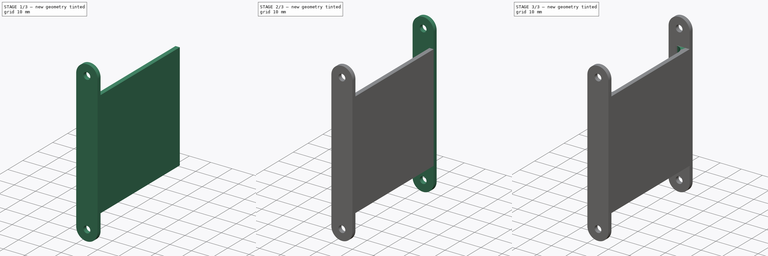
[diagram: build sequence overview — one tinted view per stage of 3, left to right]
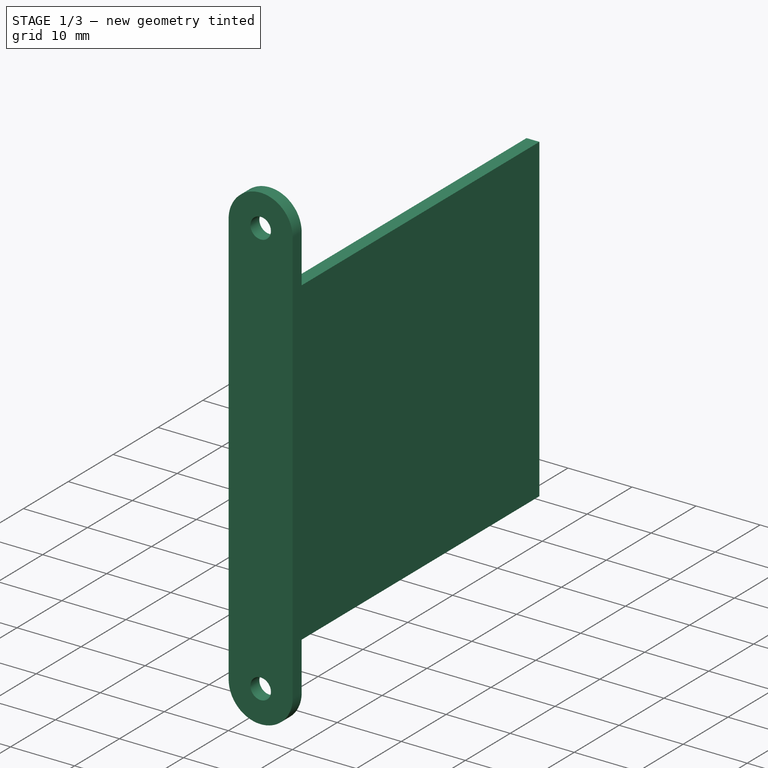
[diagram: stage 1 of 3 — iso view after this stage's code; geometry added in this stage tinted green]
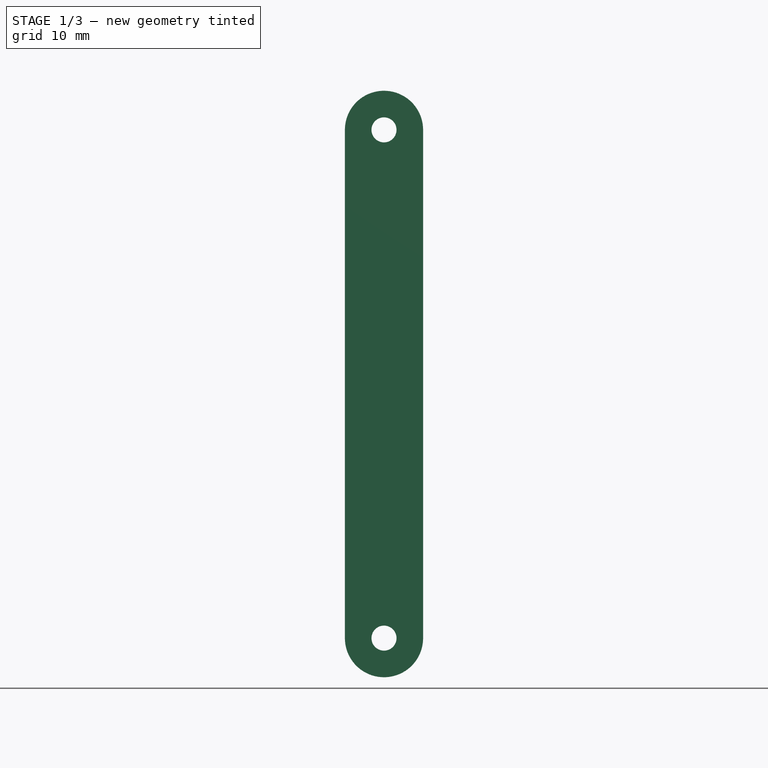
[diagram: stage 1 of 3 — front view after this stage's code; geometry added in this stage tinted green]
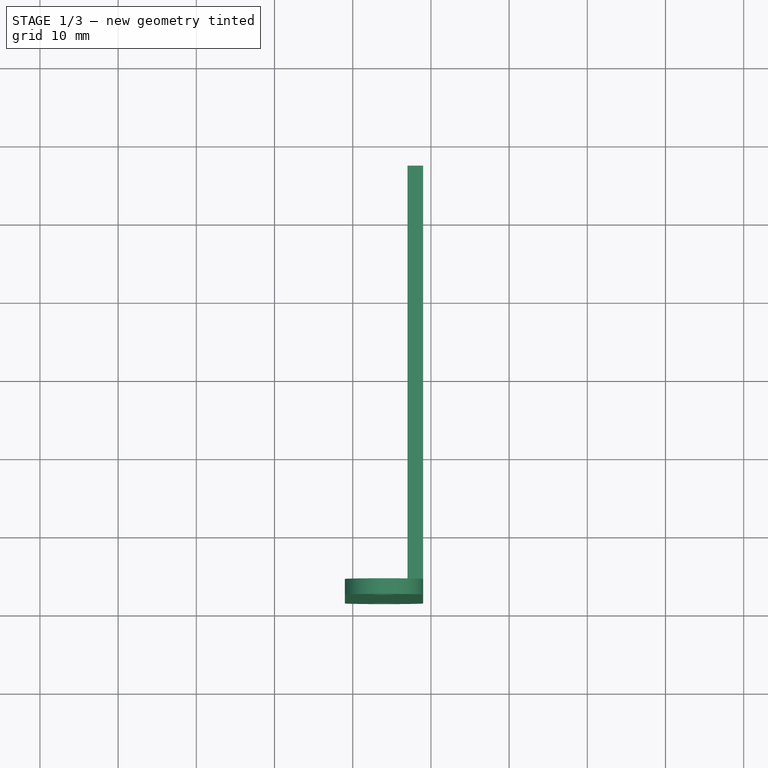
[diagram: stage 1 of 3 — top view after this stage's code; geometry added in this stage tinted green]
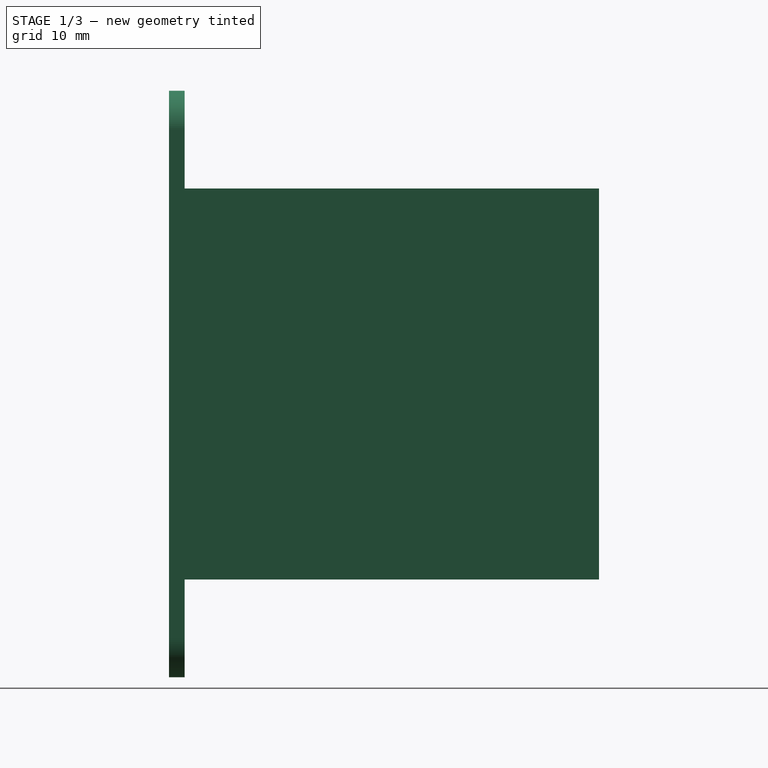
[diagram: stage 1 of 3 — right view after this stage's code; geometry added in this stage tinted green]
FCSTD DOCUMENT  (FreeCAD 0.21R33668 +26 (Git))
Label: 3FU_shin
License: All rights reserved
LicenseURL: http://en.wikipedia.org/wiki/All_rights_reserved
objects: Sketcher::SketchObject×5, PartDesign::Pad×4, Spreadsheet::Sheet×1, PartDesign::Pocket×1, PartDesign::Fillet×1, PartDesign::Body×1
note: 18 computed .brp shape members not serialized (recipe doc carries the construction recipe); baked Part::Feature solids carry a one-line shape summary decoded from their .brp

FEATURE [Sketcher::SketchObject] Sketch  label="baseSketch"
  FullyConstrained = true
  MapMode = 2
  Placement = pos=(27,0,0) rot=(0.57735,0.57735,0.57735;2.0944rad)
  expr: Constraints[10] = Spreadsheet.shin_height
  expr: Constraints[9] = Spreadsheet.shin_width
  sketch-geometry (4):
    g0: LineSegment StartX=-26.5 StartY=25 StartZ=0 EndX=26.5 EndY=25 EndZ=0
    g1: LineSegment StartX=26.5 StartY=25 StartZ=0 EndX=26.5 EndY=-25 EndZ=0
    g2: LineSegment StartX=26.5 StartY=-25 StartZ=0 EndX=-26.5 EndY=-25 EndZ=0
    g3: LineSegment StartX=-26.5 StartY=-25 StartZ=0 EndX=-26.5 EndY=25 EndZ=0
  constraints (11):
    c: Coincident(g0,g1)
    c: Coincident(g1,g2)
    c: Coincident(g2,g3)
    c: Coincident(g3,g0)
    c: Horizontal(g0)
    c: Horizontal(g2)
    c: Vertical(g1)
    c: Vertical(g3)
    c: Symmetric(g0,g1,g-1)
    c: DistanceX(g0,g0) = 53
    c: DistanceY(g3,g3) = 50
FEATURE [Spreadsheet::Sheet] Spreadsheet
  cells = A2='thickness; B2(thickness)=2; A3='shin_width; B3(shin_width)==57 - 2 * B2; C3='original: 58; A4='shin_height; B4(shin_height)=50; C4='original: 40; A5='side_len; B5(side_len)=65; A6='side_depth; B6(side_depth)==12 - B2; A7='side_radius; B7(side_radius)=5; A8='screw_hole_dia; B8(screw_hole_dia)=3.2; C8='loose; A9='wall_dist; B9(wall_dist)=8; A10='cable_width; B10(cable_width)=14; A11='cable_height; B11(cable_height)=4
FEATURE [PartDesign::Pad] Pad  label="basePad"
  Direction = (1,0,0)
  Length = 2
  Length2 = 10
  Placement = pos=(27,0,0) rot=(0.57735,0.57735,0.57735;2.0944rad)
  Profile = -> Sketch
  ReferenceAxis = -> Sketch [N_Axis]
  Type = 0
  expr: Length = Spreadsheet.thickness
FEATURE [Sketcher::SketchObject] Sketch001  label="leftSketch"
  ExternalGeometry = -> [Pad]
  FullyConstrained = true
  MapMode = 5
  Placement = pos=(27,-26.5,2.9e-15) rot=(0.57735,0.57735,-0.57735;2.0944rad)
  Support = -> [Pad]
  expr: Constraints[15] = Spreadsheet.screw_hole_dia
  expr: Constraints[1] = Spreadsheet.side_len
  expr: Constraints[5] = Spreadsheet.side_depth
  sketch-geometry (6):
    g0: LineSegment StartX=-32.5 StartY=2 StartZ=0 EndX=32.5 EndY=2 EndZ=0
    g1: LineSegment StartX=-32.5 StartY=-8 StartZ=0 EndX=32.5 EndY=-8 EndZ=0
    g2: ArcOfCircle CenterX=-32.5 CenterY=-3 CenterZ=0 NormalX=0 NormalY=0 NormalZ=1 AngleXU=0 Radius=5 StartAngle=1.5708 EndAngle=4.71239
    g3: ArcOfCircle CenterX=32.5 CenterY=-3 CenterZ=0 NormalX=0 NormalY=0 NormalZ=1 AngleXU=0 Radius=5 StartAngle=4.71239 EndAngle=7.85398
    g4: Circle CenterX=-32.5 CenterY=-3 CenterZ=0 NormalX=0 NormalY=0 NormalZ=1 AngleXU=0 Radius=1.6
    g5: Circle CenterX=32.5 CenterY=-3 CenterZ=0 NormalX=0 NormalY=0 NormalZ=1 AngleXU=0 Radius=1.6
  constraints (16):
    c: PointOnObject(g-3,g0)
    c: DistanceX(g0,g0) = 65
    c: Equal(g0,g1)
    c: Symmetric(g0,g0,g-2)
    c: Symmetric(g1,g1,g-2)
    c: DistanceY(g1,g0) = 10
    c: Coincident(g2,g0)
    c: Coincident(g2,g1)
    c: Coincident(g3,g0)
    c: Coincident(g3,g1)
    c: Vertical(g2,g0)
    c: Vertical(g3,g0)
    c: Coincident(g4,g2)
    c: Coincident(g5,g3)
    c: Equal(g4,g5)
    c: Diameter(g4) = 3.2
FEATURE [PartDesign::Pad] Pad001  label="leftPad"
  BaseFeature = -> Pad
  Direction = (-1e-16,-1,1e-16)
  Length = 2
  Length2 = 10
  Placement = pos=(27,0,0) rot=(0.57735,0.57735,0.57735;2.0944rad)
  Profile = -> Sketch001
  ReferenceAxis = -> Sketch001 [N_Axis]
  Type = 0
  expr: Length = Spreadsheet.thickness
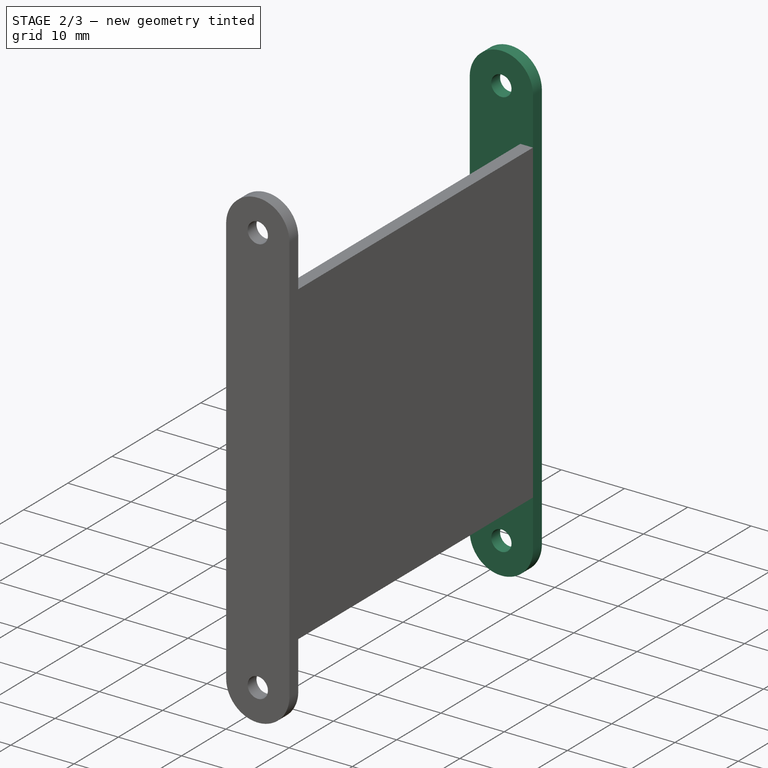
[diagram: stage 2 of 3 — iso view after this stage's code; geometry added in this stage tinted green]
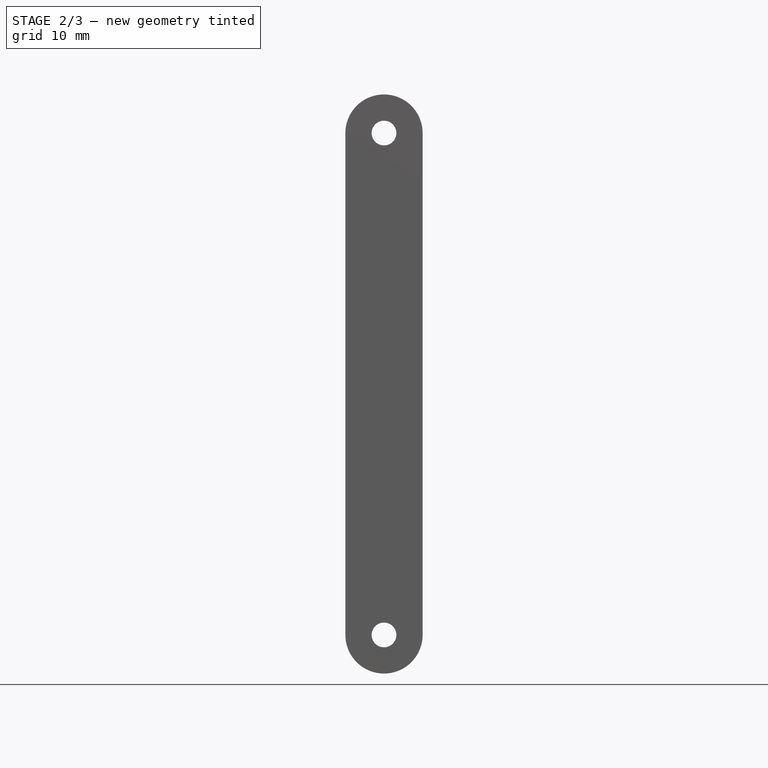
[diagram: stage 2 of 3 — front view after this stage's code; geometry added in this stage tinted green]
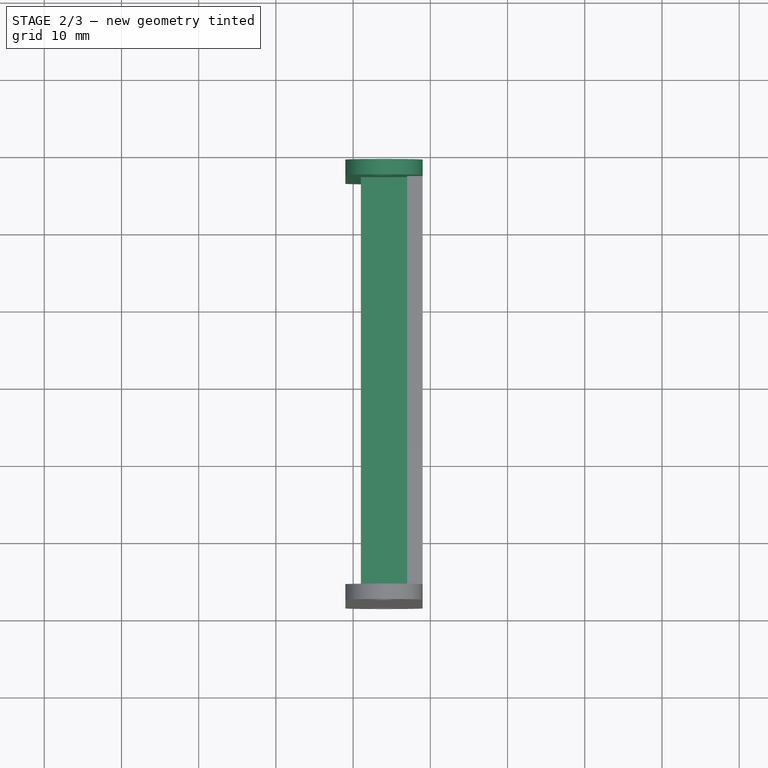
[diagram: stage 2 of 3 — top view after this stage's code; geometry added in this stage tinted green]
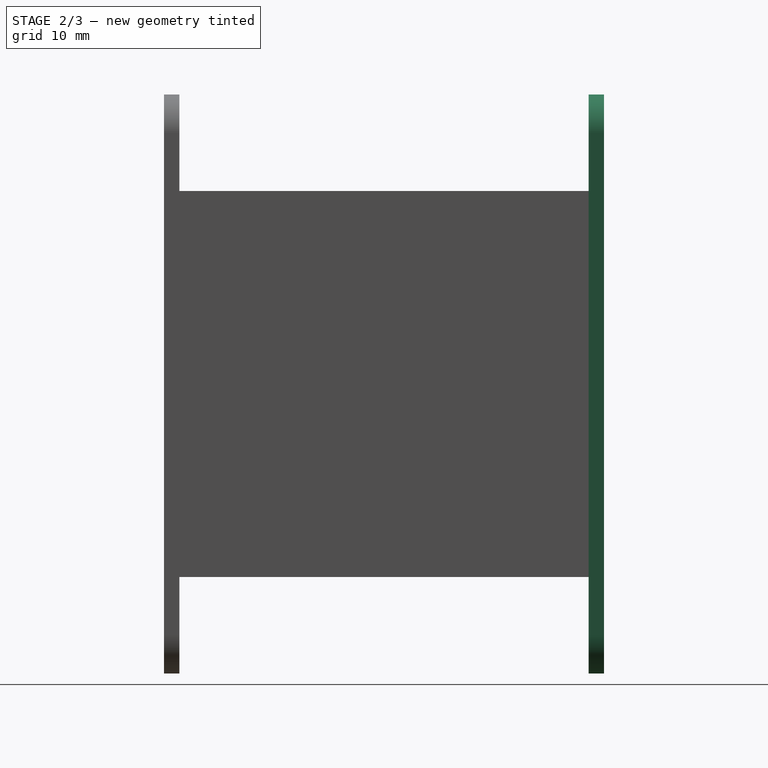
[diagram: stage 2 of 3 — right view after this stage's code; geometry added in this stage tinted green]
FEATURE [Sketcher::SketchObject] Sketch002
  ExternalGeometry = -> [Pad001]
  FullyConstrained = true
  MapMode = 5
  Placement = pos=(27,26.5,-2.9e-15) rot=(0.57735,0.57735,0.57735;4.18879rad)
  Support = -> [Pad001]
  sketch-geometry (6):
    g0: LineSegment StartX=-32.5 StartY=2 StartZ=0 EndX=32.5 EndY=2 EndZ=0
    g1: LineSegment StartX=32.5 StartY=-8 StartZ=0 EndX=-32.5 EndY=-8 EndZ=0
    g2: ArcOfCircle CenterX=-32.5 CenterY=-3 CenterZ=0 NormalX=0 NormalY=0 NormalZ=1 AngleXU=0 Radius=5 StartAngle=1.5708 EndAngle=4.71239
    g3: ArcOfCircle CenterX=32.5 CenterY=-3 CenterZ=0 NormalX=0 NormalY=0 NormalZ=1 AngleXU=0 Radius=5 StartAngle=4.71239 EndAngle=7.85398
    g4: Circle CenterX=-32.5 CenterY=-3 CenterZ=0 NormalX=0 NormalY=0 NormalZ=1 AngleXU=0 Radius=1.6
    g5: Circle CenterX=32.5 CenterY=-3 CenterZ=0 NormalX=0 NormalY=0 NormalZ=1 AngleXU=0 Radius=1.6
  constraints (14):
    c: Coincident(g0,g-5)
    c: Coincident(g0,g-8)
    c: Coincident(g1,g-8)
    c: Coincident(g1,g-6)
    c: Coincident(g2,g0)
    c: Coincident(g2,g1)
    c: Coincident(g3,g0)
    c: Coincident(g3,g1)
    c: Vertical(g2,g-4)
    c: Vertical(g3,g-8)
    c: Equal(g5,g-9)
    c: Equal(g4,g-3)
    c: Coincident(g4,g2)
    c: Coincident(g5,g3)
FEATURE [PartDesign::Pad] Pad002
  BaseFeature = -> Pad001
  Direction = (0,1,0)
  Length = 2
  Length2 = 10
  Placement = pos=(27,0,0) rot=(0.57735,0.57735,0.57735;2.0944rad)
  Profile = -> Sketch002
  ReferenceAxis = -> Sketch002 [N_Axis]
  Type = 0
  expr: Length = Spreadsheet.thickness
FEATURE [Sketcher::SketchObject] Sketch003
  ExternalGeometry = -> [Pad002]
  FullyConstrained = true
  MapMode = 5
  Placement = pos=(27,0,0) rot=(0.57735,0.57735,-0.57735;4.18879rad)
  Support = -> [Pad002]
  expr: Constraints[20] = Spreadsheet.wall_dist
  expr: Constraints[21] = Spreadsheet.wall_dist
  expr: Constraints[22] = Spreadsheet.thickness * 2
  expr: Constraints[23] = Spreadsheet.thickness * 2
  sketch-geometry (8):
    g0: LineSegment StartX=-26.5 StartY=-13 StartZ=0 EndX=26.5 EndY=-13 EndZ=0
    g1: LineSegment StartX=26.5 StartY=-13 StartZ=0 EndX=26.5 EndY=-17 EndZ=0
    g2: LineSegment StartX=26.5 StartY=-17 StartZ=0 EndX=-26.5 EndY=-17 EndZ=0
    g3: LineSegment StartX=-26.5 StartY=-17 StartZ=0 EndX=-26.5 EndY=-13 EndZ=0
    g4: LineSegment StartX=-26.5 StartY=17 StartZ=0 EndX=26.5 EndY=17 EndZ=0
    g5: LineSegment StartX=26.5 StartY=17 StartZ=0 EndX=26.5 EndY=13 EndZ=0
    g6: LineSegment StartX=26.5 StartY=13 StartZ=0 EndX=-26.5 EndY=13 EndZ=0
    g7: LineSegment StartX=-26.5 StartY=13 StartZ=0 EndX=-26.5 EndY=17 EndZ=0
  constraints (24):
    c: Coincident(g0,g1)
    c: Coincident(g1,g2)
    c: Coincident(g2,g3)
    c: Coincident(g3,g0)
    c: Horizontal(g0)
    c: Horizontal(g2)
    c: Vertical(g1)
    c: Vertical(g3)
    c: Coincident(g4,g5)
    c: Coincident(g5,g6)
    c: Coincident(g6,g7)
    c: Coincident(g7,g4)
    c: Horizontal(g4)
    c: Horizontal(g6)
    c: Vertical(g5)
    c: Vertical(g7)
    c: Vertical(g4,g-3)
    c: Vertical(g4,g-3)
    c: Vertical(g2,g-4)
    c: Vertical(g1,g-4)
    c: DistanceY(g-4,g1) = 8
    c: DistanceY(g4,g-3) = 8
    c: DistanceY(g5,g4) = 4
    c: DistanceY(g1,g1) = 4
FEATURE [PartDesign::Pad] Pad003
  BaseFeature = -> Pad002
  Direction = (-1,0,-4e-16)
  Length = 6
  Length2 = 10
  Placement = pos=(27,0,0) rot=(0.57735,0.57735,0.57735;2.0944rad)
  Profile = -> Sketch003
  ReferenceAxis = -> Sketch003 [N_Axis]
  Type = 0
  expr: Length = Spreadsheet.side_depth - 2 * Spreadsheet.thickness
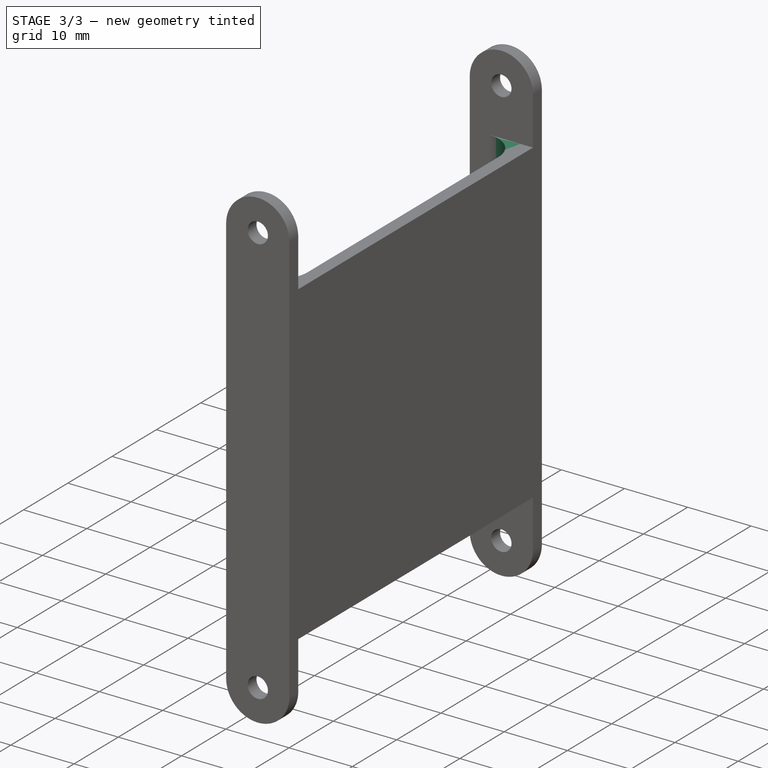
[diagram: stage 3 of 3 — iso view after this stage's code; geometry added in this stage tinted green]
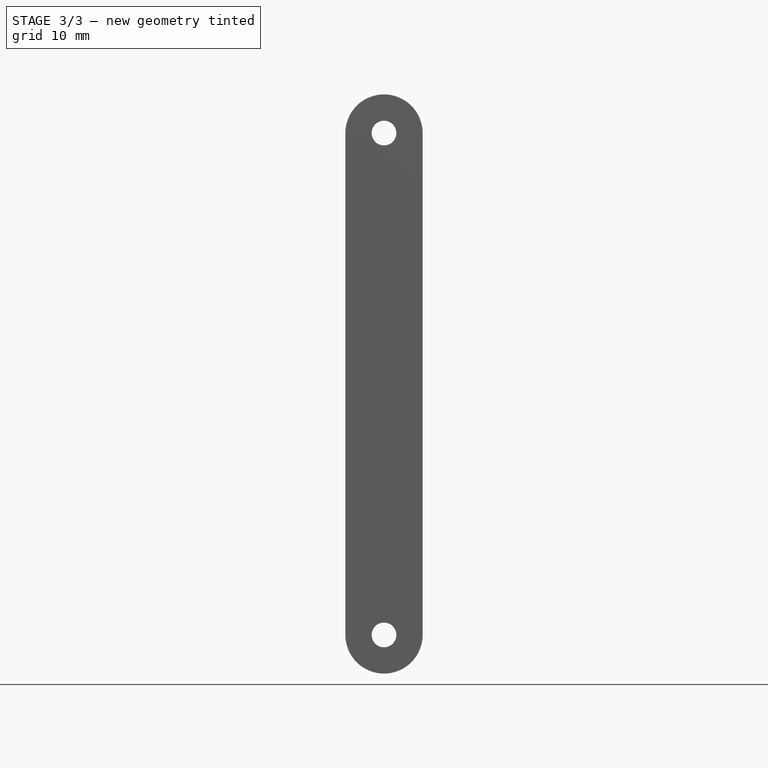
[diagram: stage 3 of 3 — front view after this stage's code; geometry added in this stage tinted green]
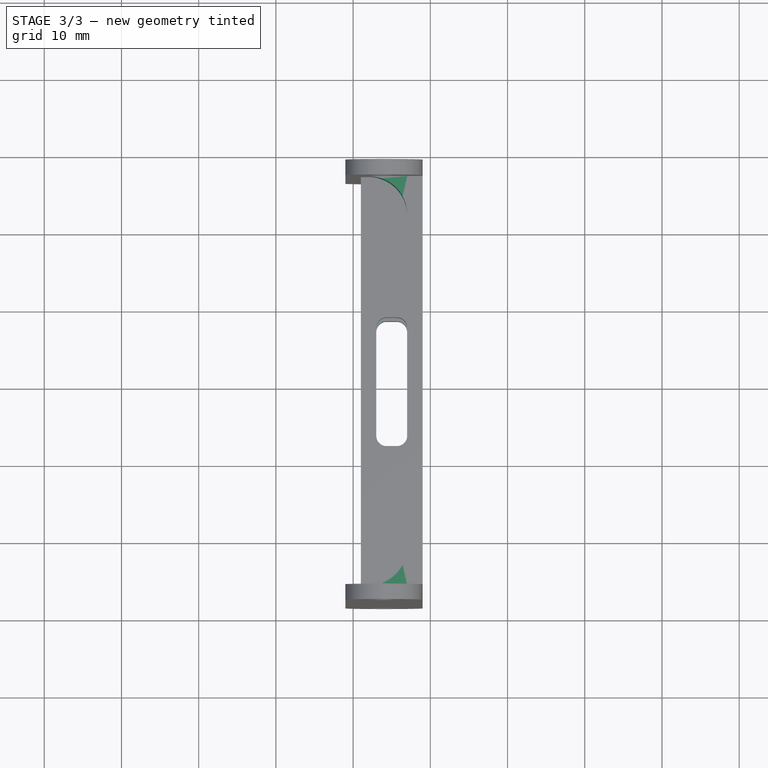
[diagram: stage 3 of 3 — top view after this stage's code; geometry added in this stage tinted green]
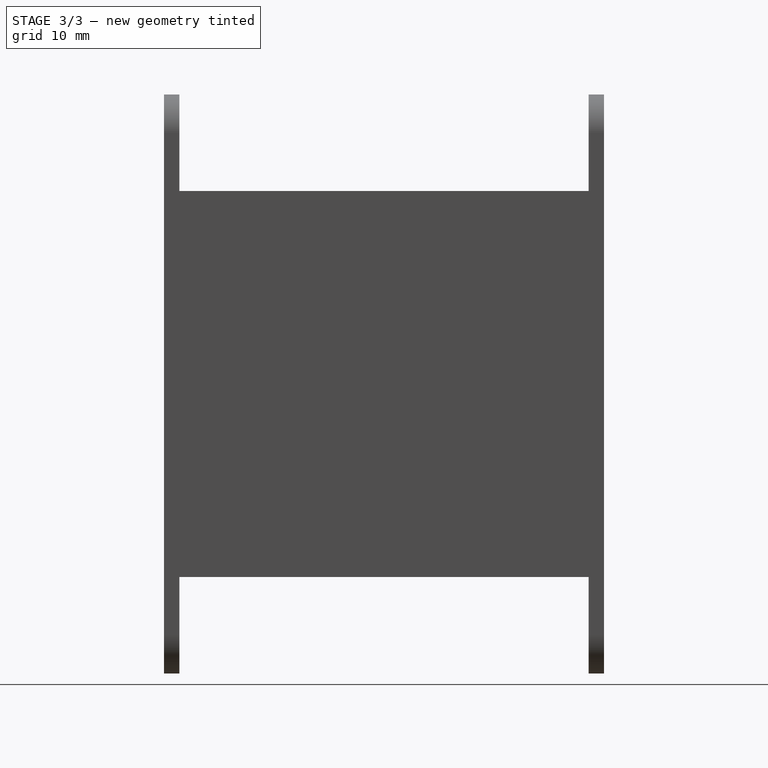
[diagram: stage 3 of 3 — right view after this stage's code; geometry added in this stage tinted green]
FEATURE [Sketcher::SketchObject] Sketch004
  ExternalGeometry = -> [Pad003]
  FullyConstrained = true
  MapMode = 5
  Placement = pos=(27,0,-17) rot=(0.707107,0.707107,0;3.14159rad)
  Support = -> [Pad003]
  expr: Constraints[20] = Spreadsheet.cable_width
  expr: Constraints[21] = Spreadsheet.cable_height
  expr: Constraints[22] = Spreadsheet.cable_height / 3
  sketch-geometry (10):
    g0: ArcOfCircle CenterX=-7 CenterY=-1.33333 CenterZ=0 NormalX=0 NormalY=0 NormalZ=1 AngleXU=0 Radius=1.33333 StartAngle=1.5708 EndAngle=3.14159
    g1: LineSegment StartX=-7 StartY=-2.4e-15 StartZ=0 EndX=7 EndY=-2.4e-15 EndZ=0
    g2: ArcOfCircle CenterX=7 CenterY=-1.33333 CenterZ=0 NormalX=0 NormalY=0 NormalZ=1 AngleXU=0 Radius=1.33333 StartAngle=1e-16 EndAngle=1.5708
    g3: LineSegment StartX=8.33333 StartY=-1.33333 StartZ=0 EndX=8.33333 EndY=-2.66667 EndZ=0
    g4: ArcOfCircle CenterX=7 CenterY=-2.66667 CenterZ=0 NormalX=0 NormalY=0 NormalZ=1 AngleXU=0 Radius=1.33333 StartAngle=4.71239 EndAngle=6.28319
    g5: LineSegment StartX=7 StartY=-4 StartZ=0 EndX=-7 EndY=-4 EndZ=0
    g6: ArcOfCircle CenterX=-7 CenterY=-2.66667 CenterZ=0 NormalX=0 NormalY=0 NormalZ=1 AngleXU=0 Radius=1.33333 StartAngle=3.14159 EndAngle=4.71239
    g7: LineSegment StartX=-8.33333 StartY=-2.66667 StartZ=0 EndX=-8.33333 EndY=-1.33333 EndZ=0
    g8: GeomPoint X=-8.33333 Y=-2.4e-15 Z=0
    g9: GeomPoint X=8.33333 Y=-4 Z=0
  constraints (23):
    c: Tangent(g0,g1) = 1.5708
    c: Tangent(g1,g2) = 1.5708
    c: Tangent(g2,g3) = 1.5708
    c: Tangent(g3,g4) = 1.5708
    c: Tangent(g4,g5) = 1.5708
    c: Tangent(g5,g6) = 1.5708
    c: Tangent(g6,g7) = 1.5708
    c: Tangent(g7,g0) = 1.5708
    c: Horizontal(g5)
    c: Vertical(g3)
    c: Vertical(g7)
    c: Equal(g0,g2)
    c: Equal(g2,g4)
    c: Equal(g4,g6)
    c: PointOnObject(g8,g1)
    c: PointOnObject(g8,g7)
    c: PointOnObject(g9,g3)
    c: PointOnObject(g9,g5)
    c: PointOnObject(g8,g-3)
    c: Symmetric(g1,g0,g-2)
    c: DistanceX(g1,g1) = 14
    c: DistanceY(g5,g0) = 4
    c: DistanceY(g0,g0) = 1.33333
FEATURE [PartDesign::Pocket] Pocket
  BaseFeature = -> Pad003
  Direction = (-6e-16,0,1)
  Length = 50
  Length2 = 5
  Placement = pos=(27,0,0) rot=(0.57735,0.57735,0.57735;2.0944rad)
  Profile = -> Sketch004
  ReferenceAxis = -> Sketch004 [N_Axis]
  Type = 0
  expr: Length = Spreadsheet.shin_height
FEATURE [PartDesign::Fillet] Fillet
  Base = -> Pocket [Edge17,Edge95,Edge21,Edge96,Edge36,Edge13]
  BaseFeature = -> Pocket
  Placement = pos=(27,0,0) rot=(0.57735,0.57735,0.57735;2.0944rad)
  Radius = 5
  SupportTransform = false
  UseAllEdges = false
FEATURE [PartDesign::Body] Body
  Group = -> [Sketch,Pad,Sketch001,Pad001,Sketch002,Pad002,Sketch003,Pad003,Sketch004,Pocket,Fillet]
  Origin = -> Origin
  Tip = -> Fillet
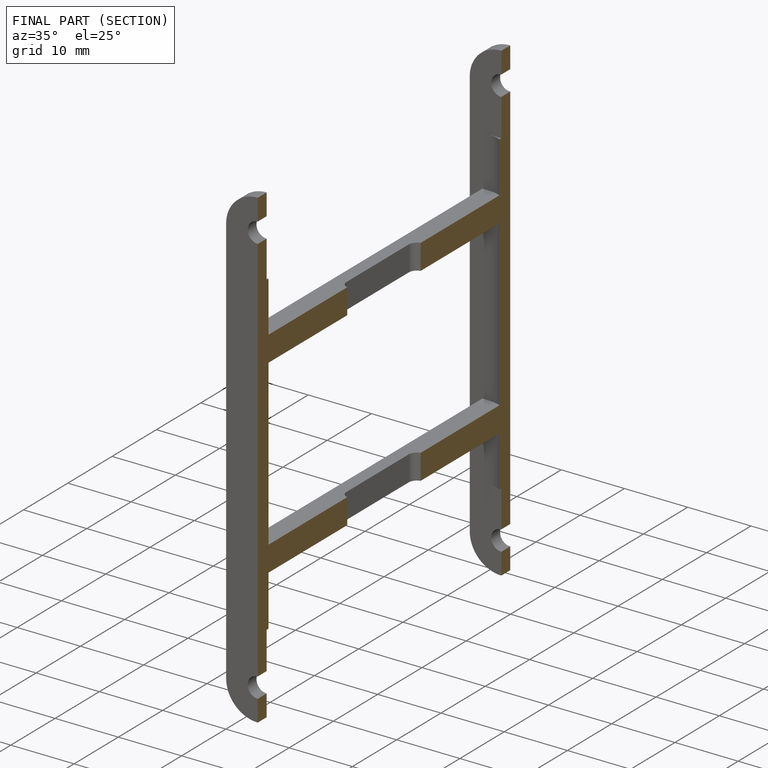
[diagram: finished part — half-section view (interior)]
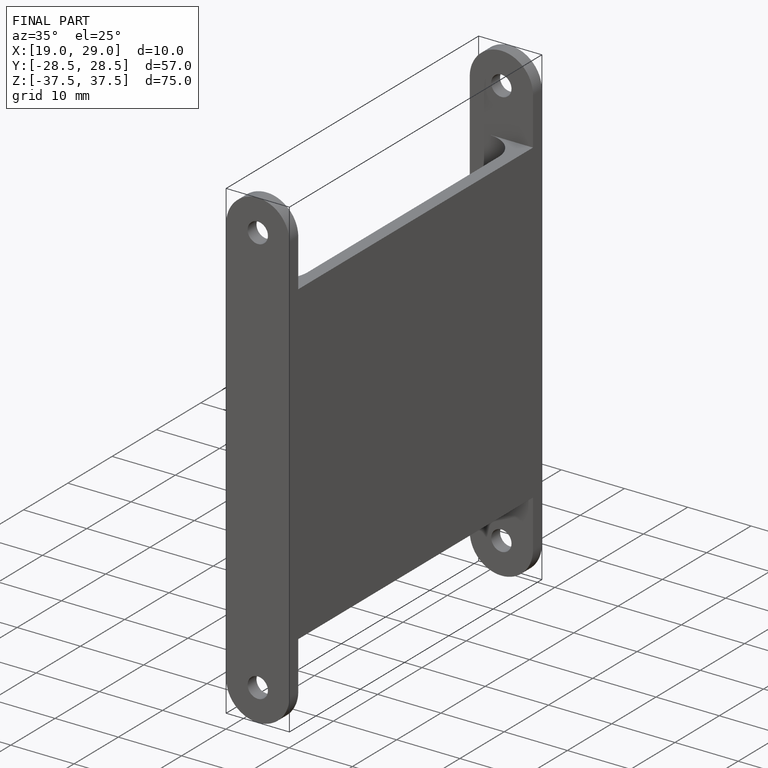
[diagram: finished part — iso view with bounding-box wireframe]
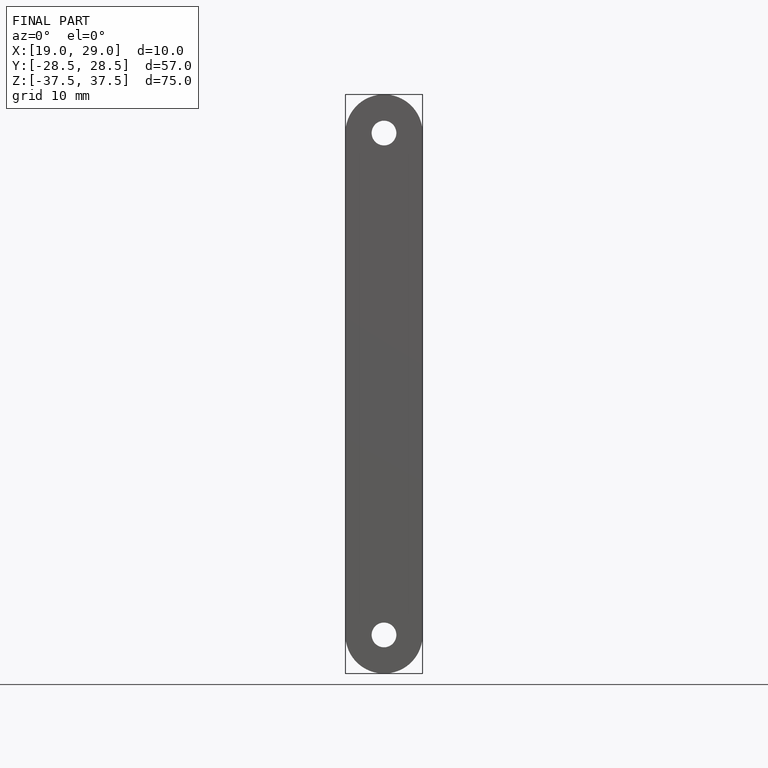
[diagram: finished part — front view with bounding-box wireframe]
